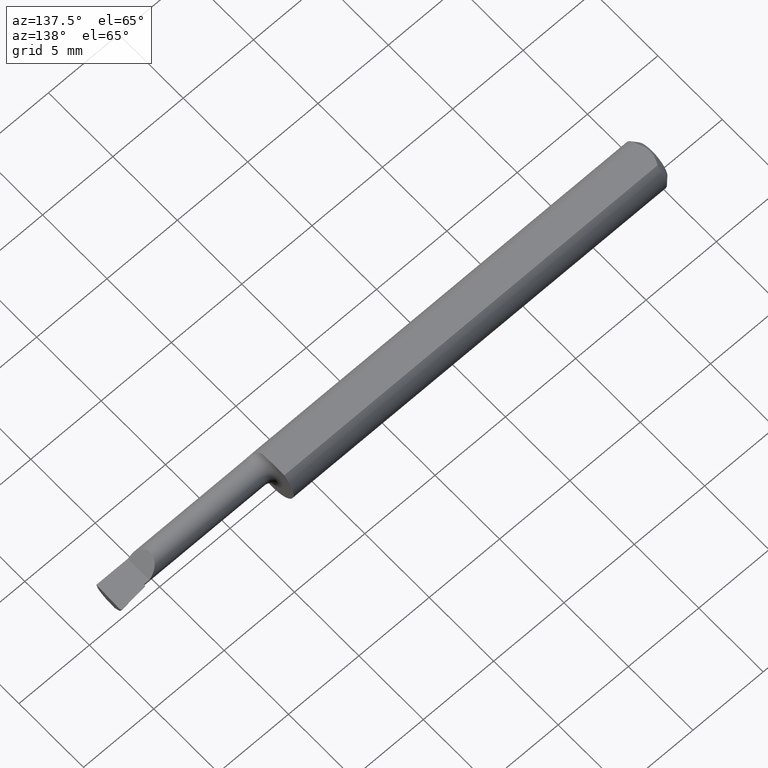
[diagram: clean part render]
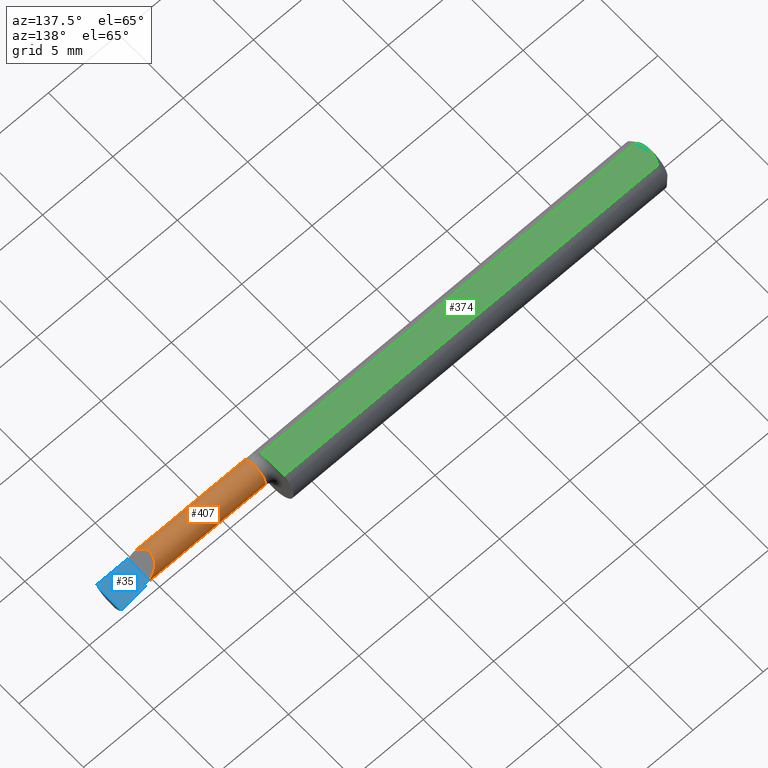
[diagram: same view with three faces highlighted in distinct colors, each labeled with its STEP entity id]
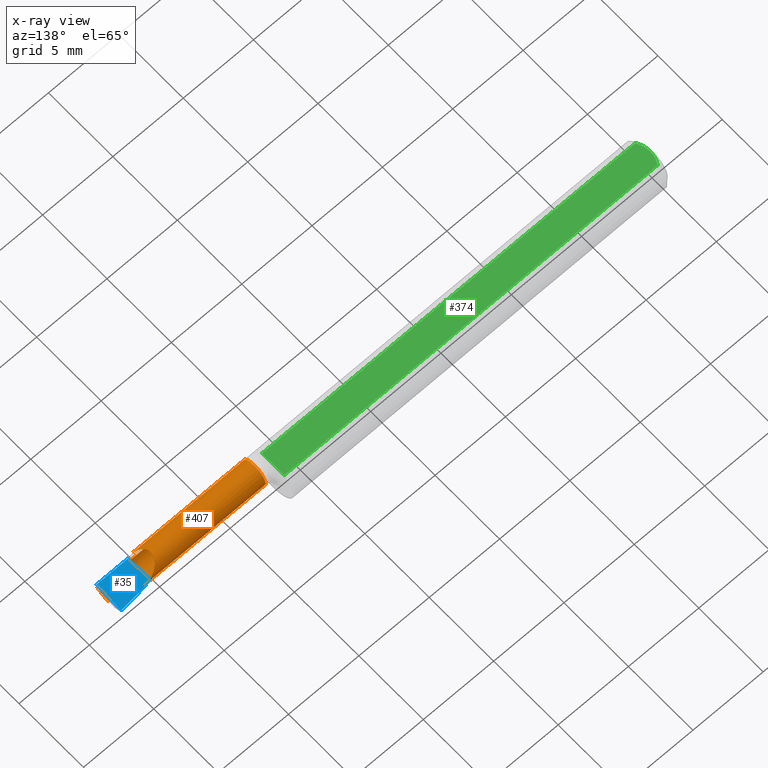
[diagram: x-ray of the same camera — body ghosted, the three highlighted faces saturated]
A machine part, auxiliary view with three faces highlighted in distinct colors.
The next image is the same camera in x-ray (body ghosted, the three faces saturated) — at least one of them is partly hidden behind the body in this view.
Their STEP definitions:

[orange] entity #407 — the highlighted cylindrical surface (edge-blend (fillet) strip) has radius 0.8547 mm, axis along (-1, 0, -0).
#9 = AXIS2_PLACEMENT_3D ( 'NONE', #580, #238, #511 ) ;
#10 = VERTEX_POINT ( 'NONE', #94 ) ;
#18 = EDGE_CURVE ( 'NONE', #384, #233, #82, .T. ) ;
#29 = CARTESIAN_POINT ( 'NONE',  ( 1.363008094618844535, 0.003649999999999974879, 0.04699190538115510102 ) ) ;
#30 = LINE ( 'NONE', #416, #212 ) ;
#39 = DIRECTION ( 'NONE',  ( 1.000000000000000000, -2.845674993400274571E-18, 0.0000000000000000000 ) ) ;
#42 = CARTESIAN_POINT ( 'NONE',  ( 1.496364186706980792, -0.06092000000000002968, -0.01327690099383122685 ) ) ;
#49 = VERTEX_POINT ( 'NONE', #599 ) ;
#53 = CARTESIAN_POINT ( 'NONE',  ( 1.422586135878207481, -0.004617293032568263803, -0.02209164292227905335 ) ) ;
#59 = B_SPLINE_CURVE_WITH_KNOTS ( 'NONE', 3,
 ( #183, #402, #446, #364 ),
 .UNSPECIFIED., .F., .F.,
 ( 4, 4 ),
 ( 0.0000000000000000000, 1.000000000000000000 ),
 .UNSPECIFIED. ) ;
#62 = CARTESIAN_POINT ( 'NONE',  ( 1.422808130611181499, -0.006922796484203440522, -0.02449010367251428302 ) ) ;
#67 = VERTEX_POINT ( 'NONE', #537 ) ;
#82 = CIRCLE ( 'NONE', #136, 0.03364999999999995772 ) ;
#85 = FACE_BOUND ( 'NONE', #481, .T. ) ;
#94 = CARTESIAN_POINT ( 'NONE',  ( 1.396723099006168756, -0.06092000000000002968, 0.01327690099383124073 ) ) ;
#103 = ORIENTED_EDGE ( 'NONE', *, *, #192, .T. ) ;
#105 = VECTOR ( 'NONE', #480, 39.37007874015748143 ) ;
#116 = ORIENTED_EDGE ( 'NONE', *, *, #348, .F. ) ;
#126 = CIRCLE ( 'NONE', #9, 0.03364999999999999936 ) ;
#127 = ORIENTED_EDGE ( 'NONE', *, *, #319, .F. ) ;
#136 = AXIS2_PLACEMENT_3D ( 'NONE', #534, #540, #519 ) ;
#137 = CARTESIAN_POINT ( 'NONE',  ( 1.425000000000000266, -0.02999999999999999889, -0.03365000000000000629 ) ) ;
#138 = VERTEX_POINT ( 'NONE', #524 ) ;
#162 = CARTESIAN_POINT ( 'NONE',  ( 1.423453955186838593, -0.005345927311154199946, -0.02292882422404297557 ) ) ;
#166 = CARTESIAN_POINT ( 'NONE',  ( 1.494942300338901298, -0.05544825464842374069, -0.02601981188465945019 ) ) ;
#170 = VERTEX_POINT ( 'NONE', #522 ) ;
#172 =( BOUNDED_CURVE ( )  B_SPLINE_CURVE ( 3, ( #280, #325, #29, #368 ),
 .UNSPECIFIED., .F., .T. ) 
 B_SPLINE_CURVE_WITH_KNOTS ( ( 4, 4 ),
 ( 5.117976542370898940, 7.853981633974482790 ),
 .UNSPECIFIED. ) 
 CURVE ( )  GEOMETRIC_REPRESENTATION_ITEM ( )  RATIONAL_B_SPLINE_CURVE ( ( 1.000000000000000000, 0.4676044288551156614, 0.4676044288551156614, 1.000000000000000000 ) ) 
 REPRESENTATION_ITEM ( '' )  );
#175 = LINE ( 'NONE', #288, #417 ) ;
#179 = AXIS2_PLACEMENT_3D ( 'NONE', #622, #273, #362 ) ;
#183 = CARTESIAN_POINT ( 'NONE',  ( 1.422586135878207481, -0.004617293032568263803, -0.02209164292227905335 ) ) ;
#189 = LINE ( 'NONE', #419, #105 ) ;
#192 = EDGE_CURVE ( 'NONE', #67, #246, #126, .T. ) ;
#194 =( BOUNDED_CURVE ( )  B_SPLINE_CURVE ( 3, ( #53, #162, #345, #62 ),
 .UNSPECIFIED., .F., .T. ) 
 B_SPLINE_CURVE_WITH_KNOTS ( ( 4, 4 ),
 ( 3.087527693676608731, 3.186434404596859338 ),
 .UNSPECIFIED. ) 
 CURVE ( )  GEOMETRIC_REPRESENTATION_ITEM ( )  RATIONAL_B_SPLINE_CURVE ( ( 1.000000000000000000, 0.9991849546734639098, 0.9991849546734639098, 1.000000000000000000 ) ) 
 REPRESENTATION_ITEM ( '' )  );
#209 = EDGE_CURVE ( 'NONE', #49, #67, #253, .T. ) ;
#212 = VECTOR ( 'NONE', #306, 39.37007874015748143 ) ;
#225 = ORIENTED_EDGE ( 'NONE', *, *, #633, .T. ) ;
#233 = VERTEX_POINT ( 'NONE', #474 ) ;
#238 = DIRECTION ( 'NONE',  ( -1.000000000000000000, 2.845674993400274571E-18, -0.0000000000000000000 ) ) ;
#246 = VERTEX_POINT ( 'NONE', #137 ) ;
#248 =( BOUNDED_CURVE ( )  B_SPLINE_CURVE ( 3, ( #483, #166, #388, #541 ),
 .UNSPECIFIED., .F., .T. ) 
 B_SPLINE_CURVE_WITH_KNOTS ( ( 4, 4 ),
 ( 5.328025986651549140, 6.493234751460234655 ),
 .UNSPECIFIED. ) 
 CURVE ( )  GEOMETRIC_REPRESENTATION_ITEM ( )  RATIONAL_B_SPLINE_CURVE ( ( 1.000000000000000000, 0.8900217005663144665, 0.8900217005663144665, 1.000000000000000000 ) ) 
 REPRESENTATION_ITEM ( '' )  );
#253 = LINE ( 'NONE', #332, #318 ) ;
#273 = DIRECTION ( 'NONE',  ( -1.000000000000000000, 2.845674993400274571E-18, -0.0000000000000000000 ) ) ;
#280 = CARTESIAN_POINT ( 'NONE',  ( 1.396723099006168756, -0.06092000000000002968, 0.01327690099383124073 ) ) ;
#288 = CARTESIAN_POINT ( 'NONE',  ( 1.255000000000000115, -0.06092000000000002968, 0.01327690099383122685 ) ) ;
#289 = EDGE_CURVE ( 'NONE', #624, #170, #248, .T. ) ;
#306 = DIRECTION ( 'NONE',  ( -1.000000000000000000, 2.845674993400274571E-18, -0.0000000000000000000 ) ) ;
#318 = VECTOR ( 'NONE', #39, 39.37007874015748143 ) ;
#319 = EDGE_CURVE ( 'NONE', #170, #246, #189, .T. ) ;
#325 = CARTESIAN_POINT ( 'NONE',  ( 1.353543612694569021, -0.04237893387051779037, 0.05645638730543054568 ) ) ;
#332 = CARTESIAN_POINT ( 'NONE',  ( 9.575696352794166315E-20, 0.003649999999999977481, 1.836970198721026976E-16 ) ) ;
#333 = ORIENTED_EDGE ( 'NONE', *, *, #499, .T. ) ;
#345 = CARTESIAN_POINT ( 'NONE',  ( 1.423528013792283220, -0.006115055335901294076, -0.02372896329039461336 ) ) ;
#348 = EDGE_CURVE ( 'NONE', #391, #138, #194, .T. ) ;
#362 = DIRECTION ( 'NONE',  ( -2.845674993400274571E-18, -1.000000000000000000, 0.0000000000000000000 ) ) ;
#364 = CARTESIAN_POINT ( 'NONE',  ( 1.422808130611181499, -0.006922796484203440522, -0.02449010367251428302 ) ) ;
#368 = CARTESIAN_POINT ( 'NONE',  ( 1.409999999999999920, 0.003649999999999939317, 1.102182119232617911E-17 ) ) ;
#384 = VERTEX_POINT ( 'NONE', #503 ) ;
#386 = EDGE_CURVE ( 'NONE', #10, #49, #172, .T. ) ;
#388 = CARTESIAN_POINT ( 'NONE',  ( 1.494308349198229635, -0.04386801266094339513, -0.03364999999999997160 ) ) ;
#391 = VERTEX_POINT ( 'NONE', #472 ) ;
#401 = EDGE_CURVE ( 'NONE', #391, #138, #59, .T. ) ;
#402 = CARTESIAN_POINT ( 'NONE',  ( 1.422660134122533782, -0.005345630279323906539, -0.02292848294241286305 ) ) ;
#407 = ADVANCED_FACE ( 'NONE', ( #458, #85 ), #563, .T. ) ;
#416 = CARTESIAN_POINT ( 'NONE',  ( 1.255000000000000115, -0.06092000000000002968, -0.01327690099383122685 ) ) ;
#417 = VECTOR ( 'NONE', #635, 39.37007874015748143 ) ;
#419 = CARTESIAN_POINT ( 'NONE',  ( 1.500000000000000222, -0.02999999999999999889, -0.03365000000000000629 ) ) ;
#446 = CARTESIAN_POINT ( 'NONE',  ( 1.422734132366858306, -0.006115384616088453441, -0.02372927357351934871 ) ) ;
#458 = FACE_OUTER_BOUND ( 'NONE', #561, .T. ) ;
#472 = CARTESIAN_POINT ( 'NONE',  ( 1.422586135878207481, -0.004617293032568263803, -0.02209164292227905335 ) ) ;
#473 = ORIENTED_EDGE ( 'NONE', *, *, #18, .F. ) ;
#474 = CARTESIAN_POINT ( 'NONE',  ( 1.085000000000000187, -0.06092000000000008519, -0.01327690099383104991 ) ) ;
#480 = DIRECTION ( 'NONE',  ( -1.000000000000000000, 5.691349986800548372E-18, -0.0000000000000000000 ) ) ;
#481 = EDGE_LOOP ( 'NONE', ( #116, #497 ) ) ;
#483 = CARTESIAN_POINT ( 'NONE',  ( 1.496364186706980792, -0.06092000000000002968, -0.01327690099383122685 ) ) ;
#497 = ORIENTED_EDGE ( 'NONE', *, *, #401, .T. ) ;
#499 = EDGE_CURVE ( 'NONE', #624, #233, #30, .T. ) ;
#503 = CARTESIAN_POINT ( 'NONE',  ( 1.085000000000000187, -0.06092000000000011989, 0.01327690099383098572 ) ) ;
#511 = DIRECTION ( 'NONE',  ( 0.0000000000000000000, -1.000000000000000000, 0.0000000000000000000 ) ) ;
#519 = DIRECTION ( 'NONE',  ( 0.0000000000000000000, -1.000000000000000000, 0.0000000000000000000 ) ) ;
#522 = CARTESIAN_POINT ( 'NONE',  ( 1.494671495890090407, -0.02999999999999999889, -0.03365000000000000629 ) ) ;
#524 = CARTESIAN_POINT ( 'NONE',  ( 1.422808130611181499, -0.006922796484203440522, -0.02449010367251428302 ) ) ;
#532 = ORIENTED_EDGE ( 'NONE', *, *, #386, .T. ) ;
#534 = CARTESIAN_POINT ( 'NONE',  ( 1.085000000000000187, -0.02999999999999999889, 0.0000000000000000000 ) ) ;
#537 = CARTESIAN_POINT ( 'NONE',  ( 1.425000000000000266, 0.003649999999999994828, 1.836970198721028208E-16 ) ) ;
#540 = DIRECTION ( 'NONE',  ( -1.000000000000000000, 2.845674993400274571E-18, -0.0000000000000000000 ) ) ;
#541 = CARTESIAN_POINT ( 'NONE',  ( 1.494671495890090407, -0.02999999999999999889, -0.03365000000000000629 ) ) ;
#561 = EDGE_LOOP ( 'NONE', ( #651, #333, #473, #225, #532, #572, #103, #127 ) ) ;
#563 = CYLINDRICAL_SURFACE ( 'NONE', #179, 0.03364999999999997854 ) ;
#572 = ORIENTED_EDGE ( 'NONE', *, *, #209, .T. ) ;
#580 = CARTESIAN_POINT ( 'NONE',  ( 1.425000000000000266, -0.02999999999999999889, 0.0000000000000000000 ) ) ;
#599 = CARTESIAN_POINT ( 'NONE',  ( 1.409999999999999920, 0.003649999999999939317, 1.102182119232617911E-17 ) ) ;
#622 = CARTESIAN_POINT ( 'NONE',  ( 0.0000000000000000000, -0.02999999999999999542, 0.0000000000000000000 ) ) ;
#624 = VERTEX_POINT ( 'NONE', #42 ) ;
#633 = EDGE_CURVE ( 'NONE', #384, #10, #175, .T. ) ;
#635 = DIRECTION ( 'NONE',  ( 1.000000000000000000, -2.845674993400274571E-18, 0.0000000000000000000 ) ) ;
#651 = ORIENTED_EDGE ( 'NONE', *, *, #289, .F. ) ;

[blue] entity #35 — the highlighted planar face has unit normal (-0, 0, -1).
#2 = VERTEX_POINT ( 'NONE', #625 ) ;
#6 = VERTEX_POINT ( 'NONE', #99 ) ;
#7 = CARTESIAN_POINT ( 'NONE',  ( 1.409999999999999920, -0.06235000000000005121, 1.102182119232617911E-17 ) ) ;
#13 = CARTESIAN_POINT ( 'NONE',  ( 1.499944638786165685, 0.01353584053852251862, 5.654436638416182417E-19 ) ) ;
#22 =( BOUNDED_CURVE ( )  B_SPLINE_CURVE ( 3, ( #80, #13, #113, #98 ),
 .UNSPECIFIED., .F., .T. ) 
 B_SPLINE_CURVE_WITH_KNOTS ( ( 4, 4 ),
 ( 1.953092279228625161, 3.511516179717927066 ),
 .UNSPECIFIED. ) 
 CURVE ( )  GEOMETRIC_REPRESENTATION_ITEM ( )  RATIONAL_B_SPLINE_CURVE ( ( 1.000000000000000000, 0.8076450242550308189, 0.8076450242550308189, 1.000000000000000000 ) ) 
 REPRESENTATION_ITEM ( '' )  );
#26 = EDGE_CURVE ( 'NONE', #6, #237, #195, .T. ) ;
#35 = ADVANCED_FACE ( 'NONE', ( #83 ), #421, .F. ) ;
#37 = DIRECTION ( 'NONE',  ( -1.000000000000000000, -0.0000000000000000000, -0.0000000000000000000 ) ) ;
#39 = DIRECTION ( 'NONE',  ( 1.000000000000000000, -2.845674993400274571E-18, 0.0000000000000000000 ) ) ;
#49 = VERTEX_POINT ( 'NONE', #599 ) ;
#58 = CARTESIAN_POINT ( 'NONE',  ( 1.495634880358096996, 0.01522968678441272497, 4.859216828160406885E-19 ) ) ;
#61 = CARTESIAN_POINT ( 'NONE',  ( 1.495883579913040773, 0.01524764111161443919, 1.062779938853728175E-18 ) ) ;
#63 = EDGE_CURVE ( 'NONE', #2, #6, #432, .T. ) ;
#67 = VERTEX_POINT ( 'NONE', #537 ) ;
#74 = VECTOR ( 'NONE', #37, 39.37007874015748143 ) ;
#76 = DIRECTION ( 'NONE',  ( 0.02617694830794567093, 0.9996573249755552615, -3.584133854804236655E-18 ) ) ;
#77 = EDGE_CURVE ( 'NONE', #67, #237, #478, .T. ) ;
#80 = CARTESIAN_POINT ( 'NONE',  ( 1.499880855614027064, 0.01110005946549046454, -8.416961635954006228E-20 ) ) ;
#83 = FACE_OUTER_BOUND ( 'NONE', #250, .T. ) ;
#98 = CARTESIAN_POINT ( 'NONE',  ( 1.496007920276510195, 0.01524764111161444266, -1.067128122525102820E-18 ) ) ;
#99 = CARTESIAN_POINT ( 'NONE',  ( 1.495634880358096996, 0.01522968678441272497, 4.859216828160406885E-19 ) ) ;
#106 = CARTESIAN_POINT ( 'NONE',  ( 1.497957498117606479, -0.06235000000000005121, 1.791754701920804801E-19 ) ) ;
#113 = CARTESIAN_POINT ( 'NONE',  ( 1.498346190944516598, 0.01524764111161450858, 7.611970671295696895E-19 ) ) ;
#129 = LINE ( 'NONE', #219, #553 ) ;
#155 = ORIENTED_EDGE ( 'NONE', *, *, #586, .F. ) ;
#157 = VERTEX_POINT ( 'NONE', #290 ) ;
#163 = VERTEX_POINT ( 'NONE', #106 ) ;
#184 = CARTESIAN_POINT ( 'NONE',  ( 1.474655795189113938, 0.01320963064143656010, 3.103769929858640237E-18 ) ) ;
#188 = DIRECTION ( 'NONE',  ( 2.845674993400274571E-18, 1.000000000000000000, -3.484946772081307763E-34 ) ) ;
#195 = LINE ( 'NONE', #184, #486 ) ;
#203 = CARTESIAN_POINT ( 'NONE',  ( 1.500000000000000222, -0.2500000000000000555, 0.0000000000000000000 ) ) ;
#206 = LINE ( 'NONE', #623, #74 ) ;
#209 = EDGE_CURVE ( 'NONE', #49, #67, #253, .T. ) ;
#219 = CARTESIAN_POINT ( 'NONE',  ( 1.493048476612020448, -0.2498179679537755049, 8.513160866287305864E-19 ) ) ;
#235 = CARTESIAN_POINT ( 'NONE',  ( 1.425000000000000266, -0.2500000000000000555, 9.184850993605122553E-18 ) ) ;
#237 = VERTEX_POINT ( 'NONE', #296 ) ;
#250 = EDGE_LOOP ( 'NONE', ( #252, #268, #490, #414, #276, #539, #527, #155 ) ) ;
#252 = ORIENTED_EDGE ( 'NONE', *, *, #447, .T. ) ;
#253 = LINE ( 'NONE', #332, #318 ) ;
#255 = DIRECTION ( 'NONE',  ( -0.0000000000000000000, 1.000000000000000000, -0.0000000000000000000 ) ) ;
#268 = ORIENTED_EDGE ( 'NONE', *, *, #566, .T. ) ;
#276 = ORIENTED_EDGE ( 'NONE', *, *, #77, .F. ) ;
#287 = VECTOR ( 'NONE', #255, 39.37007874015748143 ) ;
#290 = CARTESIAN_POINT ( 'NONE',  ( 1.499880855614027064, 0.01110005946549046454, -8.416961635954006228E-20 ) ) ;
#292 = VECTOR ( 'NONE', #188, 39.37007874015748143 ) ;
#296 = CARTESIAN_POINT ( 'NONE',  ( 1.425000000000000266, 0.008428321385185622017, 1.835460370743176819E-16 ) ) ;
#297 = AXIS2_PLACEMENT_3D ( 'NONE', #203, #453, #464 ) ;
#299 = EDGE_CURVE ( 'NONE', #482, #49, #558, .T. ) ;
#301 = CARTESIAN_POINT ( 'NONE',  ( 1.495759144559530851, 0.01524165206609383490, 1.078018874591399320E-18 ) ) ;
#318 = VECTOR ( 'NONE', #39, 39.37007874015748143 ) ;
#332 = CARTESIAN_POINT ( 'NONE',  ( 9.575696352794166315E-20, 0.003649999999999977481, 1.836970198721026976E-16 ) ) ;
#414 = ORIENTED_EDGE ( 'NONE', *, *, #26, .T. ) ;
#421 = PLANE ( 'NONE',  #297 ) ;
#425 = CARTESIAN_POINT ( 'NONE',  ( 1.409999999999999920, -0.2500000000000000555, 1.102182119232617911E-17 ) ) ;
#432 =( BOUNDED_CURVE ( )  B_SPLINE_CURVE ( 3, ( #569, #61, #301, #58 ),
 .UNSPECIFIED., .F., .T. ) 
 B_SPLINE_CURVE_WITH_KNOTS ( ( 4, 4 ),
 ( 3.511516179717927066, 3.604018710826509597 ),
 .UNSPECIFIED. ) 
 CURVE ( )  GEOMETRIC_REPRESENTATION_ITEM ( )  RATIONAL_B_SPLINE_CURVE ( ( 1.000000000000000000, 0.9992870672494010842, 0.9992870672494010842, 1.000000000000000000 ) ) 
 REPRESENTATION_ITEM ( '' )  );
#447 = EDGE_CURVE ( 'NONE', #163, #157, #129, .T. ) ;
#453 = DIRECTION ( 'NONE',  ( -1.224646799147351728E-16, 0.0000000000000000000, -1.000000000000000000 ) ) ;
#464 = DIRECTION ( 'NONE',  ( -1.000000000000000000, 0.0000000000000000000, 1.224646799147351728E-16 ) ) ;
#478 = LINE ( 'NONE', #235, #292 ) ;
#482 = VERTEX_POINT ( 'NONE', #7 ) ;
#486 = VECTOR ( 'NONE', #531, 39.37007874015748143 ) ;
#490 = ORIENTED_EDGE ( 'NONE', *, *, #63, .T. ) ;
#527 = ORIENTED_EDGE ( 'NONE', *, *, #299, .F. ) ;
#531 = DIRECTION ( 'NONE',  ( -0.9953961983671800740, -0.09584575252021024228, 1.242092384877204037E-16 ) ) ;
#537 = CARTESIAN_POINT ( 'NONE',  ( 1.425000000000000266, 0.003649999999999994828, 1.836970198721028208E-16 ) ) ;
#539 = ORIENTED_EDGE ( 'NONE', *, *, #209, .F. ) ;
#553 = VECTOR ( 'NONE', #76, 39.37007874015748854 ) ;
#558 = LINE ( 'NONE', #425, #287 ) ;
#566 = EDGE_CURVE ( 'NONE', #157, #2, #22, .T. ) ;
#569 = CARTESIAN_POINT ( 'NONE',  ( 1.496007920276510195, 0.01524764111161444266, -1.067128122525102820E-18 ) ) ;
#586 = EDGE_CURVE ( 'NONE', #163, #482, #206, .T. ) ;
#599 = CARTESIAN_POINT ( 'NONE',  ( 1.409999999999999920, 0.003649999999999939317, 1.102182119232617911E-17 ) ) ;
#623 = CARTESIAN_POINT ( 'NONE',  ( 2.249639673992780117E-32, -0.06234999999999999570, 1.836970198721026976E-16 ) ) ;
#625 = CARTESIAN_POINT ( 'NONE',  ( 1.496007920276510195, 0.01524764111161444266, -1.067128122525102820E-18 ) ) ;

[green] entity #374 — the highlighted planar face has unit normal (0, -0, -1).
#1 = VECTOR ( 'NONE', #328, 39.37007874015748143 ) ;
#15 = B_SPLINE_CURVE_WITH_KNOTS ( 'NONE', 3,
 ( #459, #411, #193, #286, #582, #242 ),
 .UNSPECIFIED., .F., .F.,
 ( 4, 2, 4 ),
 ( 0.003037199019464981685, 0.003488061124369676216, 0.003938923229274370746 ),
 .UNSPECIFIED. ) ;
#32 = CARTESIAN_POINT ( 'NONE',  ( 1.060770118751884317, -0.03386738844373782253, 0.05235000000000000070 ) ) ;
#38 = AXIS2_PLACEMENT_3D ( 'NONE', #89, #135, #449 ) ;
#73 = CARTESIAN_POINT ( 'NONE',  ( 1.060000000000000275, -0.003555718954753289696, 0.05235000000000000070 ) ) ;
#89 = CARTESIAN_POINT ( 'NONE',  ( 1.500000000000000222, 0.1123499999999999915, 0.05234999999999998682 ) ) ;
#92 = CARTESIAN_POINT ( 'NONE',  ( 1.060000000000000275, 0.1123499999999999915, 0.05234999999999998682 ) ) ;
#108 = ORIENTED_EDGE ( 'NONE', *, *, #178, .F. ) ;
#109 = EDGE_CURVE ( 'NONE', #488, #516, #501, .T. ) ;
#122 = B_SPLINE_CURVE_WITH_KNOTS ( 'NONE', 3,
 ( #73, #218, #123, #435, #174, #267 ),
 .UNSPECIFIED., .F., .F.,
 ( 4, 2, 4 ),
 ( 2.951825381264365662E-05, 0.0004145759864934283755, 0.0007996337191742130266 ),
 .UNSPECIFIED. ) ;
#123 = CARTESIAN_POINT ( 'NONE',  ( 1.060303160474311390, -0.01365768250280466507, 0.05235000000000000070 ) ) ;
#124 = CARTESIAN_POINT ( 'NONE',  ( 0.01216137397042175820, -0.02864146636719541034, 0.05235000000000000070 ) ) ;
#133 = CARTESIAN_POINT ( 'NONE',  ( 0.004999999999989931769, 7.898418181085889318E-16, 0.05235000000000000070 ) ) ;
#135 = DIRECTION ( 'NONE',  ( 0.0000000000000000000, -7.598598113218357399E-17, -1.000000000000000000 ) ) ;
#146 = VERTEX_POINT ( 'NONE', #151 ) ;
#151 = CARTESIAN_POINT ( 'NONE',  ( 0.01500000000000185213, -0.03386738844380016850, 0.05235000000000000070 ) ) ;
#174 = CARTESIAN_POINT ( 'NONE',  ( 1.060864870788666314, -0.02880649294741972899, 0.05235000000000000070 ) ) ;
#178 = EDGE_CURVE ( 'NONE', #445, #488, #15, .T. ) ;
#193 = CARTESIAN_POINT ( 'NONE',  ( 0.006064493299689842180, 0.01189382783781397189, 0.05235000000000000070 ) ) ;
#199 = CARTESIAN_POINT ( 'NONE',  ( 0.0000000000000000000, 0.03386738844375223462, 0.05234999999999997988 ) ) ;
#218 = CARTESIAN_POINT ( 'NONE',  ( 1.060000000000000275, -0.008611455327202423640, 0.05235000000000000070 ) ) ;
#221 = ORIENTED_EDGE ( 'NONE', *, *, #258, .F. ) ;
#242 = CARTESIAN_POINT ( 'NONE',  ( 0.01500000000000000465, 0.03386738844375223462, 0.05234999999999997988 ) ) ;
#244 = CARTESIAN_POINT ( 'NONE',  ( 1.060000000000000275, -0.003555718954753289696, 0.05235000000000000070 ) ) ;
#258 = EDGE_CURVE ( 'NONE', #269, #146, #454, .T. ) ;
#260 = LINE ( 'NONE', #92, #1 ) ;
#264 = VECTOR ( 'NONE', #526, 39.37007874015748143 ) ;
#266 = CARTESIAN_POINT ( 'NONE',  ( 0.01500000000000185213, -0.03386738844380016850, 0.05235000000000000070 ) ) ;
#267 = CARTESIAN_POINT ( 'NONE',  ( 1.060770118751884317, -0.03386738844373782253, 0.05235000000000000070 ) ) ;
#269 = VERTEX_POINT ( 'NONE', #32 ) ;
#270 = CARTESIAN_POINT ( 'NONE',  ( 0.006057557792978140489, -0.01187252718384441616, 0.05234999999999998682 ) ) ;
#272 = EDGE_CURVE ( 'NONE', #516, #650, #260, .T. ) ;
#274 = EDGE_LOOP ( 'NONE', ( #644, #645, #321, #108, #352, #221 ) ) ;
#283 = CARTESIAN_POINT ( 'NONE',  ( 0.0000000000000000000, -0.03386738844375222768, 0.05234999999999997988 ) ) ;
#286 = CARTESIAN_POINT ( 'NONE',  ( 0.009669996313769784607, 0.02323004575534281385, 0.05234999999999998682 ) ) ;
#308 = FACE_OUTER_BOUND ( 'NONE', #274, .T. ) ;
#313 = CARTESIAN_POINT ( 'NONE',  ( 0.004999999999989931769, 7.898418181085889318E-16, 0.05235000000000000070 ) ) ;
#316 = PLANE ( 'NONE',  #38 ) ;
#321 = ORIENTED_EDGE ( 'NONE', *, *, #109, .F. ) ;
#328 = DIRECTION ( 'NONE',  ( -2.845674993400274571E-18, -1.000000000000000000, 7.598598113218357399E-17 ) ) ;
#352 = ORIENTED_EDGE ( 'NONE', *, *, #544, .F. ) ;
#353 = CARTESIAN_POINT ( 'NONE',  ( 1.060000000000000275, 0.03386738844375224156, 0.05235000000000000070 ) ) ;
#374 = ADVANCED_FACE ( 'NONE', ( #308 ), #316, .F. ) ;
#394 = VECTOR ( 'NONE', #451, 39.37007874015748143 ) ;
#411 = CARTESIAN_POINT ( 'NONE',  ( 0.004999999999999268051, 0.005945714695019511074, 0.05235000000000000070 ) ) ;
#435 = CARTESIAN_POINT ( 'NONE',  ( 1.060746490741564241, -0.02375524936241533991, 0.05234999999999998682 ) ) ;
#445 = VERTEX_POINT ( 'NONE', #133 ) ;
#449 = DIRECTION ( 'NONE',  ( 0.0000000000000000000, 1.000000000000000000, -7.598598113218357399E-17 ) ) ;
#451 = DIRECTION ( 'NONE',  ( -1.000000000000000000, -0.0000000000000000000, -0.0000000000000000000 ) ) ;
#454 = LINE ( 'NONE', #283, #394 ) ;
#459 = CARTESIAN_POINT ( 'NONE',  ( 0.004999999999989931769, 7.898418181085889318E-16, 0.05235000000000000070 ) ) ;
#484 = CARTESIAN_POINT ( 'NONE',  ( 0.01500000000000000465, 0.03386738844375223462, 0.05234999999999997988 ) ) ;
#488 = VERTEX_POINT ( 'NONE', #484 ) ;
#501 = LINE ( 'NONE', #199, #264 ) ;
#515 = EDGE_CURVE ( 'NONE', #650, #269, #122, .T. ) ;
#516 = VERTEX_POINT ( 'NONE', #353 ) ;
#526 = DIRECTION ( 'NONE',  ( 1.000000000000000000, 0.0000000000000000000, 0.0000000000000000000 ) ) ;
#542 = B_SPLINE_CURVE_WITH_KNOTS ( 'NONE', 3,
 ( #266, #124, #554, #270, #612, #313 ),
 .UNSPECIFIED., .F., .F.,
 ( 4, 2, 4 ),
 ( 0.002133667072902290657, 0.002585433046183636171, 0.003037199019464981685 ),
 .UNSPECIFIED. ) ;
#544 = EDGE_CURVE ( 'NONE', #146, #445, #542, .T. ) ;
#554 = CARTESIAN_POINT ( 'NONE',  ( 0.009678036133109307534, -0.02325481837211496039, 0.05235000000000000070 ) ) ;
#582 = CARTESIAN_POINT ( 'NONE',  ( 0.01218518006020415795, 0.02868529347538067639, 0.05235000000000000070 ) ) ;
#612 = CARTESIAN_POINT ( 'NONE',  ( 0.004999999999998879473, -0.005957634400466955450, 0.05235000000000000070 ) ) ;
#644 = ORIENTED_EDGE ( 'NONE', *, *, #515, .F. ) ;
#645 = ORIENTED_EDGE ( 'NONE', *, *, #272, .F. ) ;
#650 = VERTEX_POINT ( 'NONE', #244 ) ;